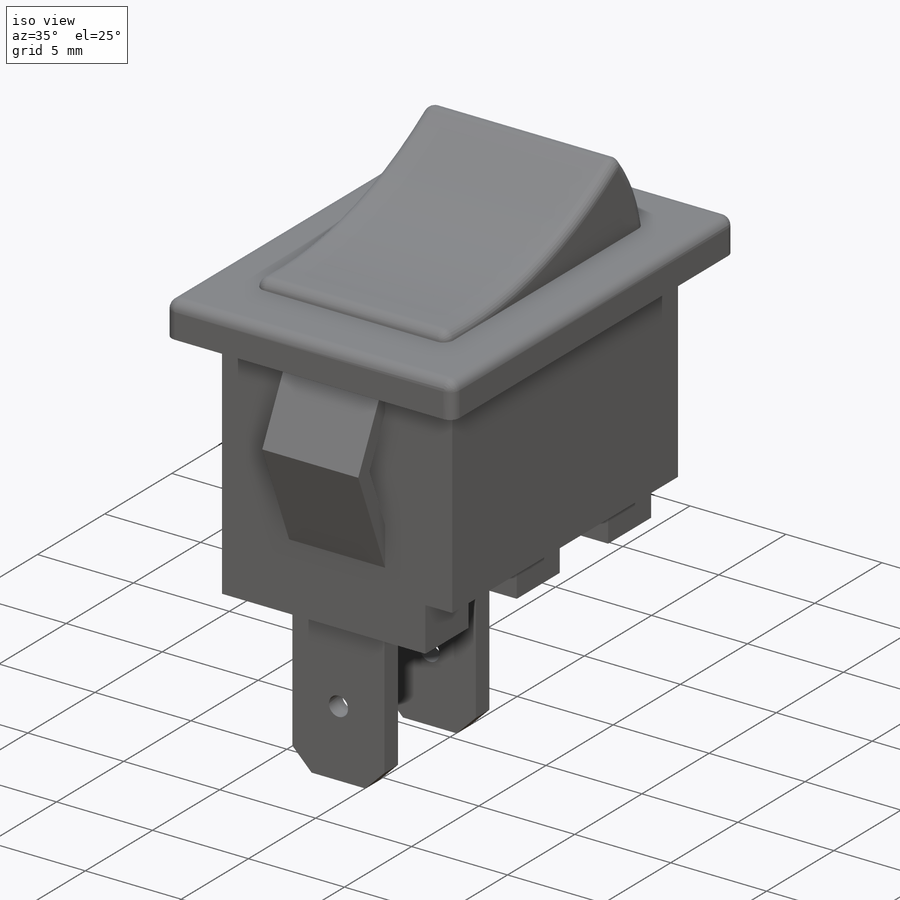
[diagram: iso view]
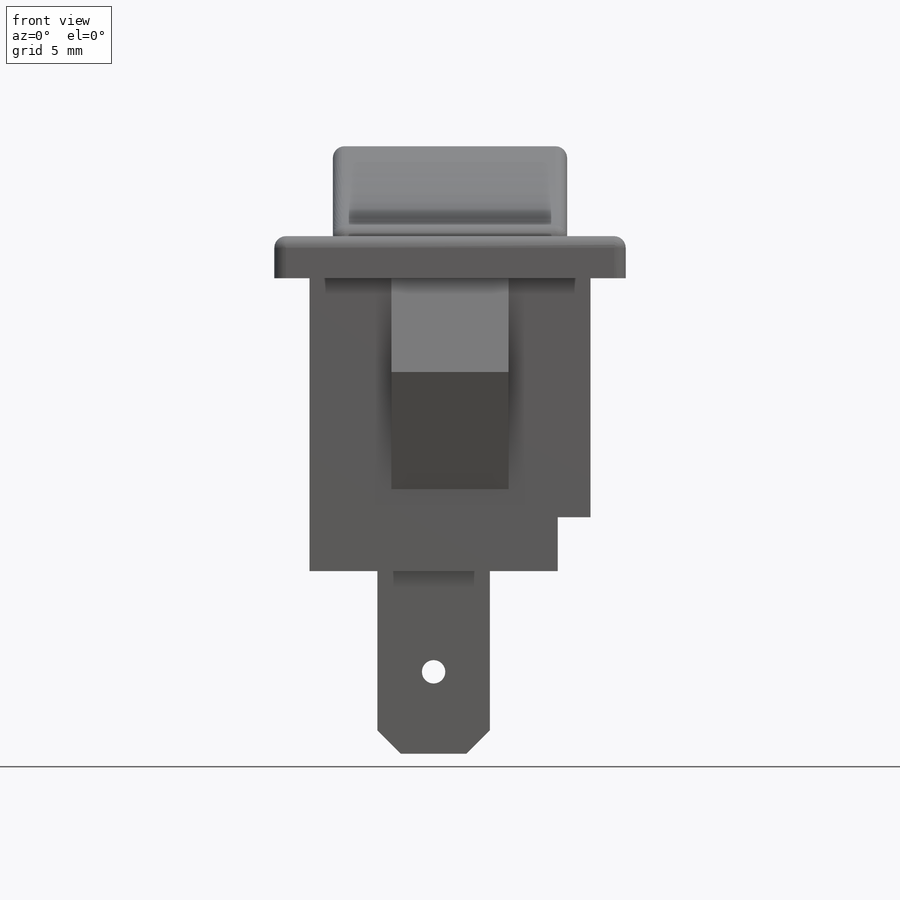
[diagram: front view]
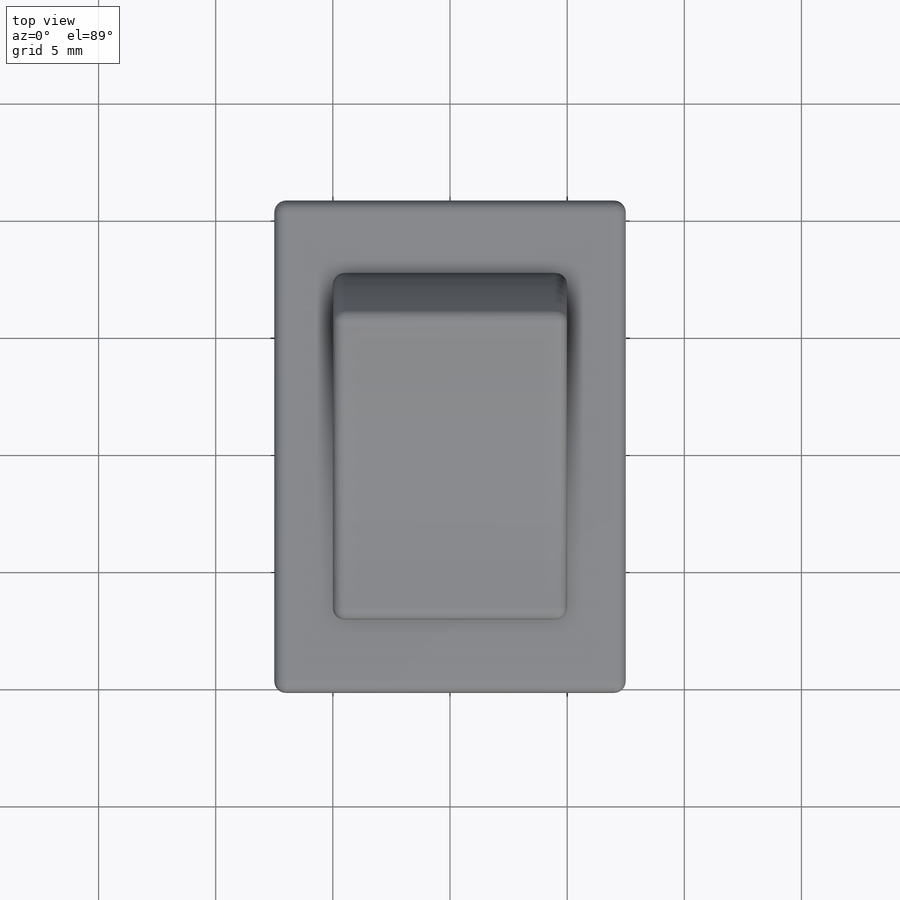
[diagram: top view]
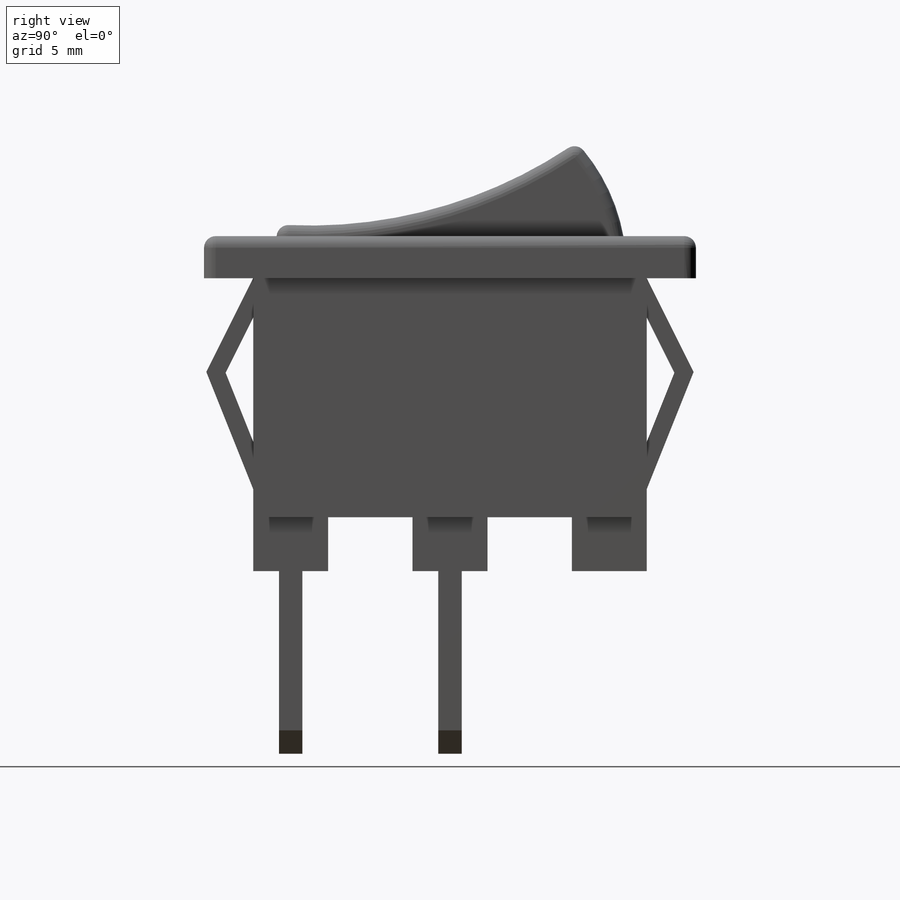
[diagram: right view]
SOLIDWORKS PART (.sldprt)
format: sldprt  version: not decoded by parser v0  size: 333,312 bytes
history: native  units: mm
features: sketch x6, extrude x5, mirror x2, fillet x2, material x1, plane x1 (+12 scaffold rows collapsed)
feature tree (29):
  scaffold x12  (default folders/planes/origin — collapsed)
  material  "Material <not specified>"
  sketch  "Sketch1"  dims[D1=15.0mm D2=21.0mm]
  extrude  "Boss-Extrude1"  Depth=1.8mm
  sketch  "Sketch2"  dims[D1=16.8mm D2=12.0mm]
  extrude  "Boss-Extrude2"  Depth=10.2mm
  sketch  "Sketch3"  dims[D1=10.6mm D2=3.2mm D3=6.5mm D4=1.0mm]
  extrude  "Boss-Extrude3"  Depth=2.3mm
  sketch  "Sketch4"  dims[c1.D3=1.0mm c1.D1=4.8mm c1.D2=7.8mm c2.D2=7.8mm c2.D6=3.0mm]
  extrude  "Boss-Extrude4"  Depth=1mm
  plane  "Plane1"
  mirror  "Mirror1"
  sketch  "Sketch5"  dims[c1.D1=2.0mm c1.D2=9.0mm c1.D3=4.0mm c2.D1=5.0mm c2.D5=0.75mm c2.D6=1.0mm c2.D7=5.0mm]
  mirror  "Mirror2"
  sketch  "Sketch6"  dims[D5=20.0mm D6=8.0mm D1=14.8mm D2=4.0mm D3=0.5mm D4=2.0mm]
  extrude  "Boss-Extrude5"  Depth=10mm
  fillet  "Fillet1"  Radius=0.5mm
  fillet  "Fillet2"  Radius=0.5mm
decode coverage: 13 of 15 modeling features carry decoded parameters
note: suppression state not decoded; provenance and decode notes live in map.json
